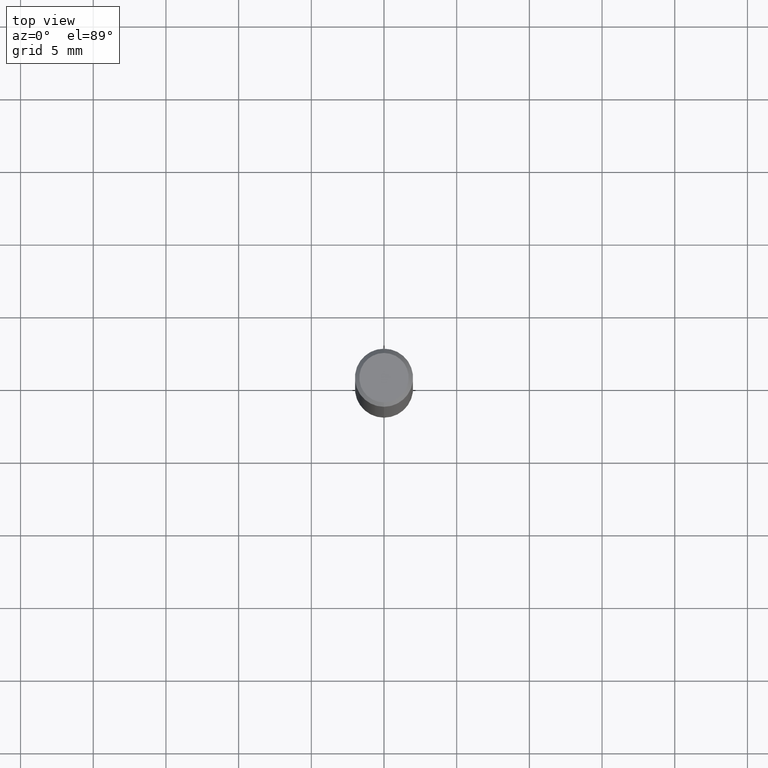
[diagram: clean part render]
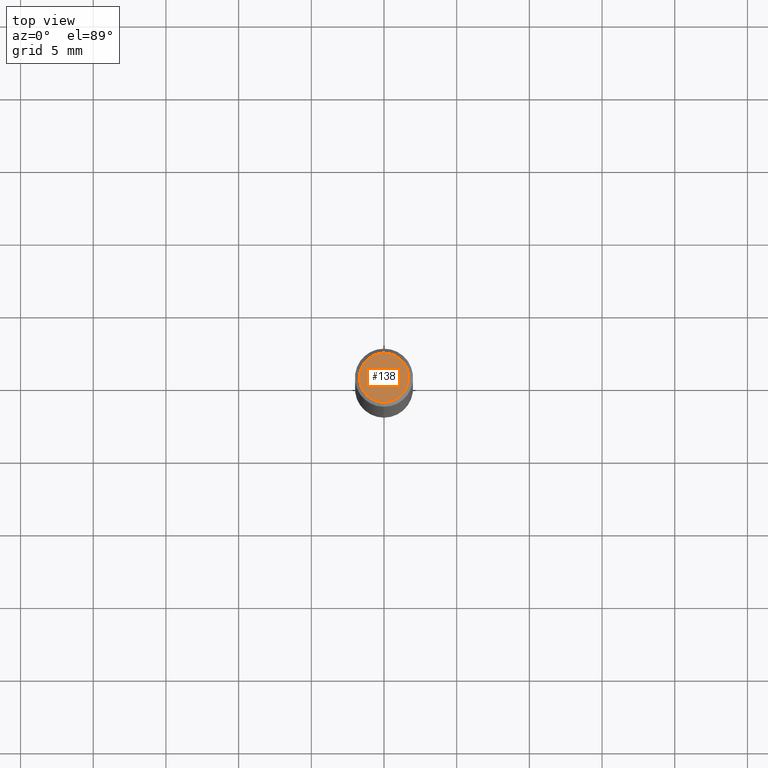
[diagram: same view with one face highlighted and labeled with its STEP entity id]
A machine part, top view. The second image highlights one B-rep face of the part: STEP entity #138.
In plain terms, the highlighted planar face has unit normal (-0, 0, 1).
Its self-contained STEP definition (entity closure, byte-faithful):
#138=ADVANCED_FACE('',(#269),#270,.T.);
#162=EDGE_CURVE('',#174,#170,#299,.T.);
#170=VERTEX_POINT('',#307);
#174=VERTEX_POINT('',#312);
#188=EDGE_CURVE('',#170,#174,#328,.T.);
#269=FACE_OUTER_BOUND('',#423,.T.);
#270=PLANE('',#424);
#299=CIRCLE('',#455,1.7);
#307=CARTESIAN_POINT('',(2.08183080149804E-016,-1.7,0.0));
#312=CARTESIAN_POINT('',(0.0,1.7,0.0));
#328=CIRCLE('',#488,1.7);
#423=EDGE_LOOP('',(#561,#562));
#424=AXIS2_PLACEMENT_3D('',#563,#564,#565);
#455=AXIS2_PLACEMENT_3D('',#609,#610,#611);
#488=AXIS2_PLACEMENT_3D('',#644,#645,#646);
#561=ORIENTED_EDGE('',*,*,#162,.F.);
#562=ORIENTED_EDGE('',*,*,#188,.F.);
#563=CARTESIAN_POINT('',(0.0,0.85,0.0));
#564=DIRECTION('',(-0.0,0.0,1.0));
#565=DIRECTION('',(0.0,-1.0,0.0));
#609=CARTESIAN_POINT('',(0.0,0.0,0.0));
#610=DIRECTION('',(0.0,0.0,-1.0));
#611=DIRECTION('',(0.0,1.0,0.0));
#644=CARTESIAN_POINT('',(0.0,0.0,0.0));
#645=DIRECTION('',(0.0,0.0,-1.0));
#646=DIRECTION('',(0.0,1.0,0.0));